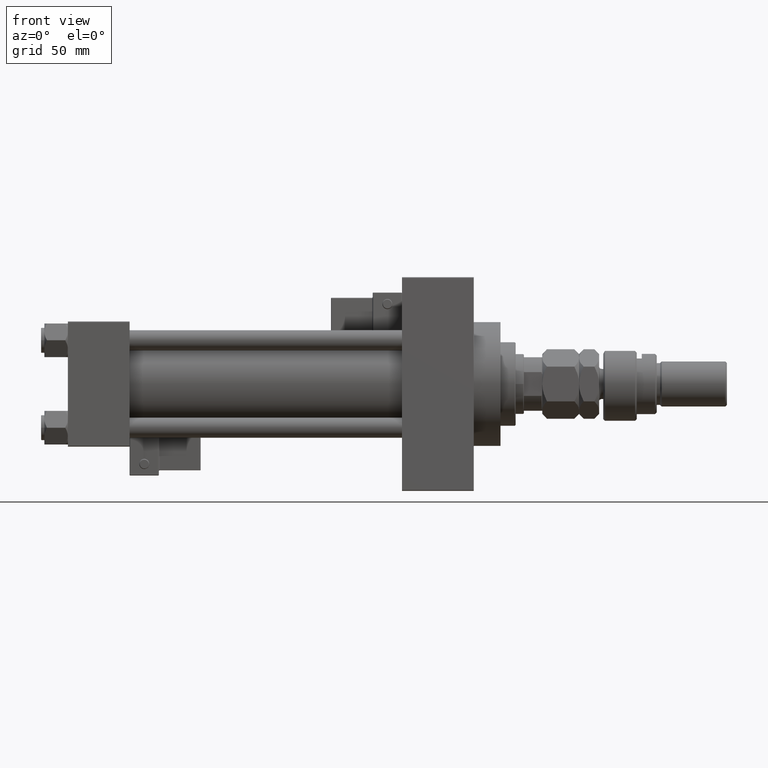
[diagram: clean part render]
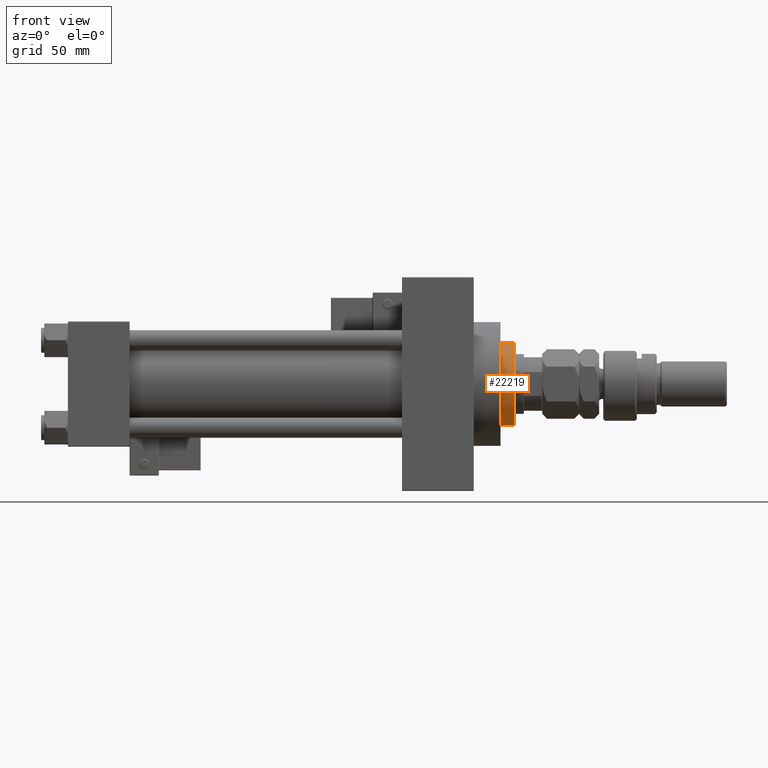
[diagram: same view with one face highlighted and labeled with its STEP entity id]
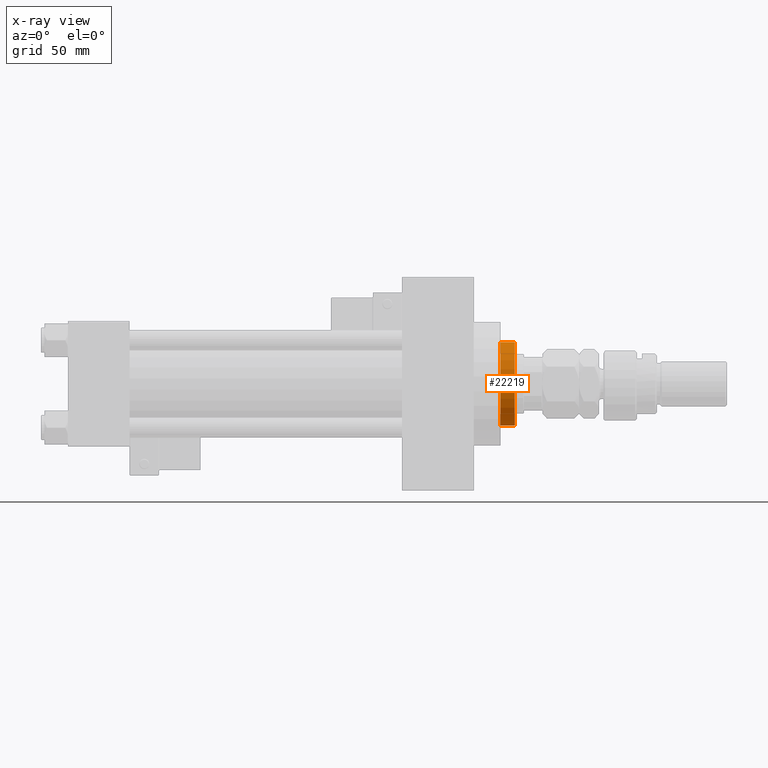
[diagram: x-ray of the same camera — body ghosted, the highlighted face saturated]
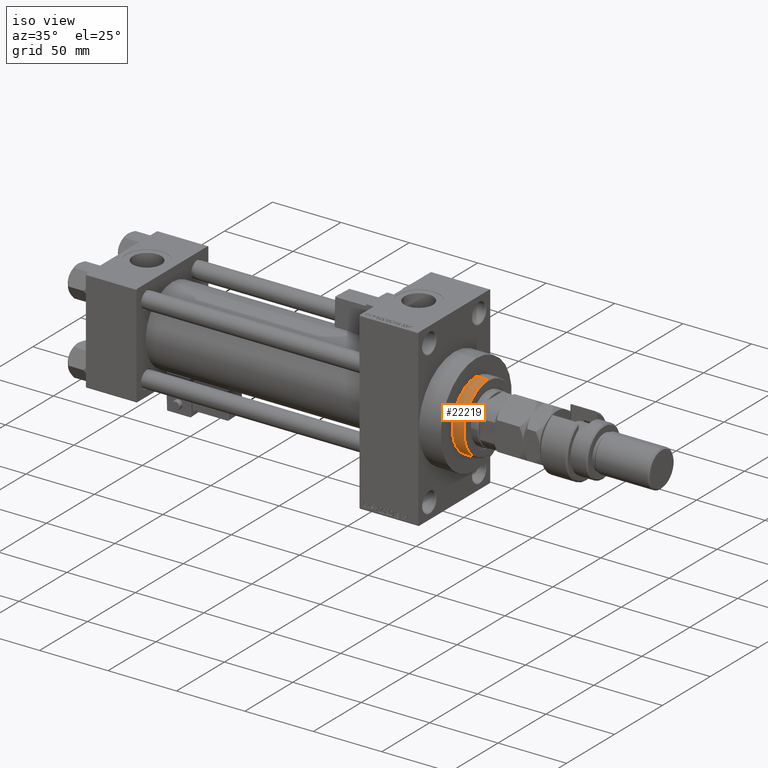
[diagram: same view with one face highlighted and labeled with its STEP entity id]
A machine part, front view. The second image highlights one B-rep face of the part: STEP entity #22219.
The next image is the same camera in x-ray: the body ghosted, the highlighted face saturated — about 0% of this face is hidden behind the body in this view.
A second angle (iso view) of the same face is appended — the face is thin or edge-on in the first view.
In plain terms, the highlighted cylindrical surface (partial cylindrical patch) has radius 25 mm, axis along (-1, 0, 0).
Its self-contained STEP definition (entity closure, byte-faithful):
#1335 = DIRECTION ( 'NONE',  ( -1.000000000000000000, 0.000000000000000000, 0.000000000000000000 ) ) ;
#2024 = CARTESIAN_POINT ( 'NONE',  ( -25.00000000000000000, 0.000000000000000000, 43.25999999999999801 ) ) ;
#5005 = DIRECTION ( 'NONE',  ( 1.000000000000000000, 0.000000000000000000, 0.000000000000000000 ) ) ;
#6347 = VERTEX_POINT ( 'NONE', #2024 ) ;
#6722 = DIRECTION ( 'NONE',  ( 1.000000000000000000, 0.000000000000000000, 0.000000000000000000 ) ) ;
#11017 = EDGE_CURVE ( 'NONE', #35017, #6347, #22331, .T. ) ;
#12195 = CARTESIAN_POINT ( 'NONE',  ( 0.000000000000000000, 0.000000000000000000, 43.25999999999999801 ) ) ;
#13154 = DIRECTION ( 'NONE',  ( -0.000000000000000000, -0.000000000000000000, -1.000000000000000000 ) ) ;
#17547 = CYLINDRICAL_SURFACE ( 'NONE', #20183, 25.00000000000000000 ) ;
#17585 = LINE ( 'NONE', #45944, #17723 ) ;
#17723 = VECTOR ( 'NONE', #33575, 1000.000000000000000 ) ;
#18365 = CARTESIAN_POINT ( 'NONE',  ( 25.00000000000000000, 3.061616997868383043E-15, 51.76000000000001222 ) ) ;
#18456 = ORIENTED_EDGE ( 'NONE', *, *, #41559, .T. ) ;
#18732 = CARTESIAN_POINT ( 'NONE',  ( 0.000000000000000000, 0.000000000000000000, 51.76000000000001222 ) ) ;
#18841 = AXIS2_PLACEMENT_3D ( 'NONE', #12195, #44408, #6722 ) ;
#20183 = AXIS2_PLACEMENT_3D ( 'NONE', #46716, #13154, #1335 ) ;
#21831 = AXIS2_PLACEMENT_3D ( 'NONE', #18732, #42684, #5005 ) ;
#22219 = ADVANCED_FACE ( 'NONE', ( #47805 ), #17547, .T. ) ;
#22331 = CIRCLE ( 'NONE', #18841, 25.00000000000000000 ) ;
#23223 = VERTEX_POINT ( 'NONE', #18365 ) ;
#30368 = CARTESIAN_POINT ( 'NONE',  ( -25.00000000000000000, 0.000000000000000000, 52.25999999999999801 ) ) ;
#32134 = ORIENTED_EDGE ( 'NONE', *, *, #34352, .T. ) ;
#33051 = ORIENTED_EDGE ( 'NONE', *, *, #11017, .T. ) ;
#33193 = EDGE_CURVE ( 'NONE', #50122, #6347, #38357, .T. ) ;
#33575 = DIRECTION ( 'NONE',  ( -0.000000000000000000, -0.000000000000000000, -1.000000000000000000 ) ) ;
#34352 = EDGE_CURVE ( 'NONE', #50122, #23223, #54346, .T. ) ;
#35017 = VERTEX_POINT ( 'NONE', #53734 ) ;
#35103 = VECTOR ( 'NONE', #50219, 1000.000000000000000 ) ;
#38357 = LINE ( 'NONE', #30368, #35103 ) ;
#40988 = CARTESIAN_POINT ( 'NONE',  ( -25.00000000000000000, 0.000000000000000000, 51.76000000000001222 ) ) ;
#41559 = EDGE_CURVE ( 'NONE', #23223, #35017, #17585, .T. ) ;
#42684 = DIRECTION ( 'NONE',  ( 0.000000000000000000, 0.000000000000000000, -1.000000000000000000 ) ) ;
#44408 = DIRECTION ( 'NONE',  ( 0.000000000000000000, 0.000000000000000000, 1.000000000000000000 ) ) ;
#45054 = EDGE_LOOP ( 'NONE', ( #32134, #18456, #33051, #46757 ) ) ;
#45944 = CARTESIAN_POINT ( 'NONE',  ( 25.00000000000000000, 3.061616997868383043E-15, 52.25999999999999801 ) ) ;
#46716 = CARTESIAN_POINT ( 'NONE',  ( 0.000000000000000000, 0.000000000000000000, 52.25999999999999801 ) ) ;
#46757 = ORIENTED_EDGE ( 'NONE', *, *, #33193, .F. ) ;
#47805 = FACE_OUTER_BOUND ( 'NONE', #45054, .T. ) ;
#50122 = VERTEX_POINT ( 'NONE', #40988 ) ;
#50219 = DIRECTION ( 'NONE',  ( -0.000000000000000000, -0.000000000000000000, -1.000000000000000000 ) ) ;
#53734 = CARTESIAN_POINT ( 'NONE',  ( 25.00000000000000000, 3.061616997868383043E-15, 43.25999999999999801 ) ) ;
#54346 = CIRCLE ( 'NONE', #21831, 25.00000000000000000 ) ;